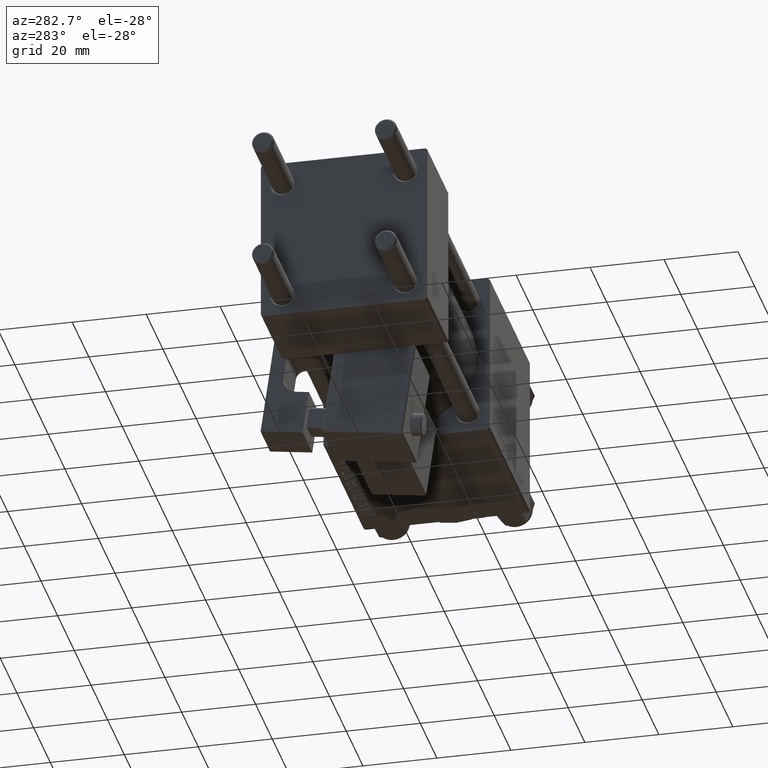
[diagram: clean part render]
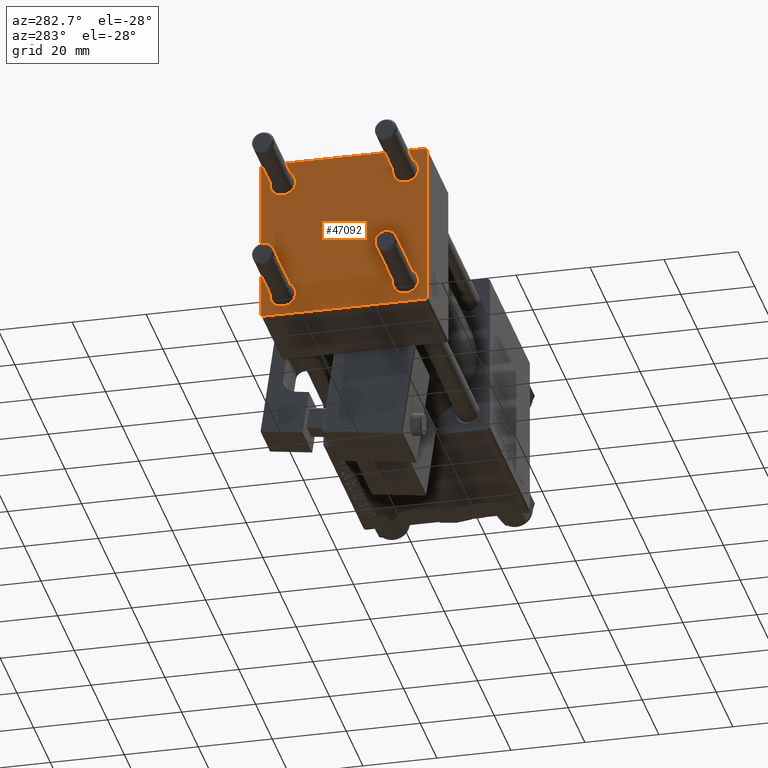
[diagram: same view with one face highlighted and labeled with its STEP entity id]
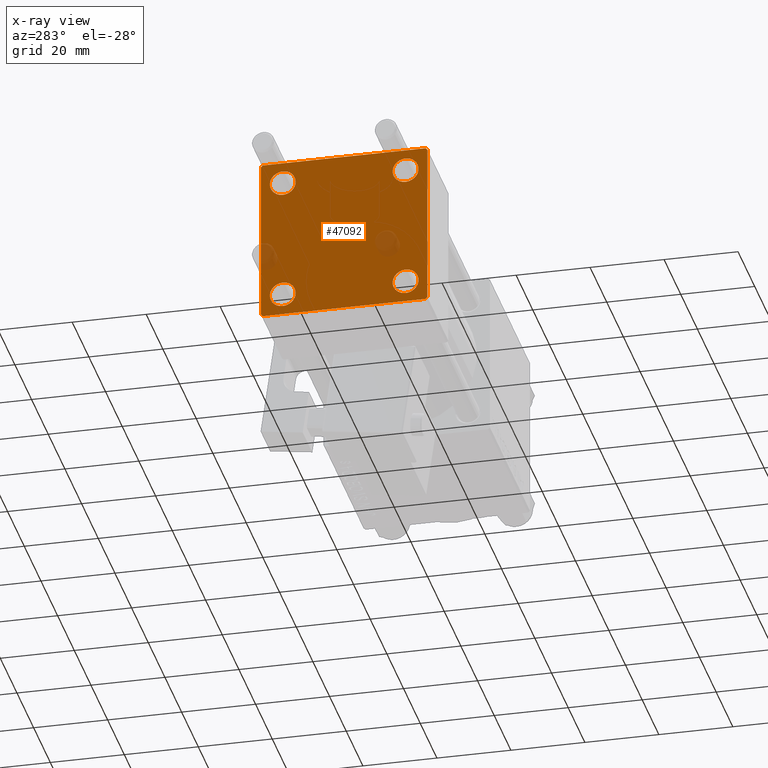
[diagram: x-ray of the same camera — body ghosted, the highlighted face saturated]
A machine part, auxiliary view. The second image highlights one B-rep face of the part: STEP entity #47092.
The next image is the same camera in x-ray: the body ghosted, the highlighted face saturated — about 4% of this face is hidden behind the body in this view.
In plain terms, the highlighted planar face has unit normal (-1, 0, 0).
Its self-contained STEP definition (entity closure, byte-faithful):
#74 = DIRECTION ( 'NONE',  ( 0.000000000000000000, -1.000000000000000000, -7.709882115452476934E-17 ) ) ;
#1433 = CARTESIAN_POINT ( 'NONE',  ( 0.000000000000000000, -22.50000000000000000, 22.00000000000000000 ) ) ;
#1848 = VERTEX_POINT ( 'NONE', #3739 ) ;
#2011 = CARTESIAN_POINT ( 'NONE',  ( 0.000000000000000000, -16.59999999999999076, -20.10000000000000497 ) ) ;
#2493 = CARTESIAN_POINT ( 'NONE',  ( 0.000000000000000000, -16.59999999999999076, -16.60000000000000853 ) ) ;
#3388 = CARTESIAN_POINT ( 'NONE',  ( 0.000000000000000000, 16.59999999999999787, 16.60000000000000497 ) ) ;
#3739 = CARTESIAN_POINT ( 'NONE',  ( 0.000000000000000000, -21.99999999999997158, -22.50000000000000711 ) ) ;
#4203 = VECTOR ( 'NONE', #74, 1000.000000000000000 ) ;
#4820 = VECTOR ( 'NONE', #14344, 1000.000000000000000 ) ;
#4884 = CIRCLE ( 'NONE', #51283, 3.499999999999996003 ) ;
#4924 = CARTESIAN_POINT ( 'NONE',  ( 0.000000000000000000, -22.25000000000014566, -22.24999999999984013 ) ) ;
#5824 = AXIS2_PLACEMENT_3D ( 'NONE', #22515, #50839, #6700 ) ;
#5914 = FACE_OUTER_BOUND ( 'NONE', #36065, .T. ) ;
#6700 = DIRECTION ( 'NONE',  ( -0.000000000000000000, 0.000000000000000000, 1.000000000000000000 ) ) ;
#7170 = DIRECTION ( 'NONE',  ( 1.000000000000000000, -0.000000000000000000, 0.000000000000000000 ) ) ;
#7255 = ORIENTED_EDGE ( 'NONE', *, *, #27872, .T. ) ;
#7354 = DIRECTION ( 'NONE',  ( 0.000000000000000000, 0.000000000000000000, 1.000000000000000000 ) ) ;
#7822 = DIRECTION ( 'NONE',  ( 0.000000000000000000, 0.000000000000000000, 1.000000000000000000 ) ) ;
#7938 = DIRECTION ( 'NONE',  ( 0.000000000000000000, 0.000000000000000000, -1.000000000000000000 ) ) ;
#8897 = EDGE_CURVE ( 'NONE', #45718, #21175, #48620, .T. ) ;
#8956 = ORIENTED_EDGE ( 'NONE', *, *, #33418, .T. ) ;
#9461 = CARTESIAN_POINT ( 'NONE',  ( 0.000000000000000000, 22.50000000000000000, 21.99999999999999645 ) ) ;
#9640 = EDGE_LOOP ( 'NONE', ( #47154, #17246 ) ) ;
#9792 = EDGE_CURVE ( 'NONE', #48255, #41336, #24974, .T. ) ;
#9871 = VERTEX_POINT ( 'NONE', #33959 ) ;
#10195 = VECTOR ( 'NONE', #42475, 999.9999999999998863 ) ;
#10863 = DIRECTION ( 'NONE',  ( 0.000000000000000000, 0.000000000000000000, 1.000000000000000000 ) ) ;
#11584 = VERTEX_POINT ( 'NONE', #39827 ) ;
#11982 = DIRECTION ( 'NONE',  ( 0.000000000000000000, -1.000000000000000000, -2.312964634635742957E-16 ) ) ;
#12271 = LINE ( 'NONE', #44533, #4820 ) ;
#12340 = CARTESIAN_POINT ( 'NONE',  ( 0.000000000000000000, -22.50000000000000000, 22.50000000000000000 ) ) ;
#12435 = VERTEX_POINT ( 'NONE', #9461 ) ;
#12673 = CIRCLE ( 'NONE', #42205, 3.499999999999996003 ) ;
#13439 = ORIENTED_EDGE ( 'NONE', *, *, #39315, .T. ) ;
#13634 = DIRECTION ( 'NONE',  ( 1.000000000000000000, -0.000000000000000000, 0.000000000000000000 ) ) ;
#13643 = VERTEX_POINT ( 'NONE', #32210 ) ;
#14088 = FACE_BOUND ( 'NONE', #52042, .T. ) ;
#14344 = DIRECTION ( 'NONE',  ( -0.000000000000000000, -0.7071067811865426878, -0.7071067811865524577 ) ) ;
#14465 = LINE ( 'NONE', #38230, #10195 ) ;
#14872 = PLANE ( 'NONE',  #5824 ) ;
#15587 = DIRECTION ( 'NONE',  ( 0.000000000000000000, 0.7071067811865474617, -0.7071067811865474617 ) ) ;
#15703 = EDGE_CURVE ( 'NONE', #41336, #48255, #4884, .T. ) ;
#15848 = LINE ( 'NONE', #44147, #50236 ) ;
#16245 = EDGE_LOOP ( 'NONE', ( #50190, #51485 ) ) ;
#16533 = VECTOR ( 'NONE', #41107, 1000.000000000000000 ) ;
#17246 = ORIENTED_EDGE ( 'NONE', *, *, #23243, .T. ) ;
#17283 = CARTESIAN_POINT ( 'NONE',  ( 0.000000000000000000, -16.59999999999999076, -16.60000000000000853 ) ) ;
#17861 = DIRECTION ( 'NONE',  ( 1.000000000000000000, -0.000000000000000000, 0.000000000000000000 ) ) ;
#18773 = CARTESIAN_POINT ( 'NONE',  ( 0.000000000000000000, 16.59999999999999787, 16.60000000000000497 ) ) ;
#19679 = DIRECTION ( 'NONE',  ( 1.000000000000000000, -0.000000000000000000, 0.000000000000000000 ) ) ;
#20255 = VERTEX_POINT ( 'NONE', #49016 ) ;
#20795 = VERTEX_POINT ( 'NONE', #2011 ) ;
#20879 = EDGE_CURVE ( 'NONE', #33220, #13643, #34754, .T. ) ;
#21175 = VERTEX_POINT ( 'NONE', #32237 ) ;
#21257 = CIRCLE ( 'NONE', #30543, 3.499999999999996003 ) ;
#22020 = VERTEX_POINT ( 'NONE', #1433 ) ;
#22210 = ORIENTED_EDGE ( 'NONE', *, *, #15703, .T. ) ;
#22515 = CARTESIAN_POINT ( 'NONE',  ( 0.000000000000000000, 0.000000000000000000, 0.000000000000000000 ) ) ;
#22591 = CARTESIAN_POINT ( 'NONE',  ( 0.000000000000000000, -16.59999999999999076, 13.10000000000001030 ) ) ;
#22783 = EDGE_CURVE ( 'NONE', #11584, #20795, #29555, .T. ) ;
#23079 = EDGE_CURVE ( 'NONE', #47030, #1848, #48734, .T. ) ;
#23243 = EDGE_CURVE ( 'NONE', #21175, #45718, #12673, .T. ) ;
#23475 = DIRECTION ( 'NONE',  ( 0.000000000000000000, 0.000000000000000000, 1.000000000000000000 ) ) ;
#23963 = CARTESIAN_POINT ( 'NONE',  ( 0.000000000000000000, -16.59999999999999076, 20.10000000000000853 ) ) ;
#24497 = DIRECTION ( 'NONE',  ( 0.000000000000000000, 0.000000000000000000, -1.000000000000000000 ) ) ;
#24974 = CIRCLE ( 'NONE', #29193, 3.499999999999996003 ) ;
#25193 = CARTESIAN_POINT ( 'NONE',  ( 0.000000000000000000, 22.50000000000000000, -21.99999999999996803 ) ) ;
#25232 = DIRECTION ( 'NONE',  ( 0.000000000000000000, 0.000000000000000000, 1.000000000000000000 ) ) ;
#26035 = EDGE_LOOP ( 'NONE', ( #7255, #8956 ) ) ;
#26411 = ORIENTED_EDGE ( 'NONE', *, *, #34248, .F. ) ;
#26527 = CIRCLE ( 'NONE', #39197, 3.499999999999996003 ) ;
#26583 = DIRECTION ( 'NONE',  ( 0.000000000000000000, 0.000000000000000000, 1.000000000000000000 ) ) ;
#26886 = ORIENTED_EDGE ( 'NONE', *, *, #20879, .F. ) ;
#26973 = ORIENTED_EDGE ( 'NONE', *, *, #37177, .T. ) ;
#27557 = CARTESIAN_POINT ( 'NONE',  ( 0.000000000000000000, 16.59999999999999787, -16.60000000000000497 ) ) ;
#27571 = ORIENTED_EDGE ( 'NONE', *, *, #23079, .T. ) ;
#27872 = EDGE_CURVE ( 'NONE', #20255, #9871, #21257, .T. ) ;
#28587 = VERTEX_POINT ( 'NONE', #52028 ) ;
#28702 = AXIS2_PLACEMENT_3D ( 'NONE', #2493, #46110, #42397 ) ;
#28951 = ORIENTED_EDGE ( 'NONE', *, *, #34958, .T. ) ;
#29132 = VECTOR ( 'NONE', #24497, 1000.000000000000000 ) ;
#29193 = AXIS2_PLACEMENT_3D ( 'NONE', #36901, #13634, #37158 ) ;
#29203 = LINE ( 'NONE', #4924, #16533 ) ;
#29555 = CIRCLE ( 'NONE', #28702, 3.499999999999996003 ) ;
#30312 = CARTESIAN_POINT ( 'NONE',  ( 0.000000000000000000, 16.59999999999999787, -13.10000000000000675 ) ) ;
#30543 = AXIS2_PLACEMENT_3D ( 'NONE', #3388, #31377, #7354 ) ;
#31377 = DIRECTION ( 'NONE',  ( 1.000000000000000000, -0.000000000000000000, 0.000000000000000000 ) ) ;
#31702 = AXIS2_PLACEMENT_3D ( 'NONE', #27557, #17861, #26583 ) ;
#32210 = CARTESIAN_POINT ( 'NONE',  ( 0.000000000000000000, -21.99999999999997868, 22.50000000000000000 ) ) ;
#32237 = CARTESIAN_POINT ( 'NONE',  ( 0.000000000000000000, 16.59999999999999787, -20.10000000000000142 ) ) ;
#32243 = LINE ( 'NONE', #44690, #39158 ) ;
#32584 = EDGE_CURVE ( 'NONE', #33220, #12435, #32243, .T. ) ;
#32904 = DIRECTION ( 'NONE',  ( 1.000000000000000000, -0.000000000000000000, 0.000000000000000000 ) ) ;
#33220 = VERTEX_POINT ( 'NONE', #36798 ) ;
#33418 = EDGE_CURVE ( 'NONE', #9871, #20255, #26527, .T. ) ;
#33959 = CARTESIAN_POINT ( 'NONE',  ( 0.000000000000000000, 16.59999999999999787, 13.10000000000000675 ) ) ;
#34248 = EDGE_CURVE ( 'NONE', #22020, #28587, #48568, .T. ) ;
#34421 = FACE_BOUND ( 'NONE', #9640, .T. ) ;
#34754 = LINE ( 'NONE', #46680, #4203 ) ;
#34958 = EDGE_CURVE ( 'NONE', #12435, #38392, #15848, .T. ) ;
#35078 = CIRCLE ( 'NONE', #35938, 3.499999999999996003 ) ;
#35938 = AXIS2_PLACEMENT_3D ( 'NONE', #17283, #32904, #25232 ) ;
#36065 = EDGE_LOOP ( 'NONE', ( #28951, #13439, #27571, #26973, #26411, #49175, #26886, #39304 ) ) ;
#36635 = EDGE_CURVE ( 'NONE', #20795, #11584, #35078, .T. ) ;
#36798 = CARTESIAN_POINT ( 'NONE',  ( 0.000000000000000000, 21.99999999999999289, 22.50000000000000355 ) ) ;
#36901 = CARTESIAN_POINT ( 'NONE',  ( 0.000000000000000000, -16.59999999999999076, 16.60000000000000853 ) ) ;
#37158 = DIRECTION ( 'NONE',  ( 0.000000000000000000, 0.000000000000000000, 1.000000000000000000 ) ) ;
#37177 = EDGE_CURVE ( 'NONE', #1848, #28587, #29203, .T. ) ;
#38123 = FACE_BOUND ( 'NONE', #16245, .T. ) ;
#38230 = CARTESIAN_POINT ( 'NONE',  ( -0.000000000000000000, -22.24999999999984013, 22.25000000000015277 ) ) ;
#38392 = VERTEX_POINT ( 'NONE', #25193 ) ;
#39158 = VECTOR ( 'NONE', #15587, 1000.000000000000114 ) ;
#39197 = AXIS2_PLACEMENT_3D ( 'NONE', #18773, #7170, #10863 ) ;
#39304 = ORIENTED_EDGE ( 'NONE', *, *, #32584, .T. ) ;
#39315 = EDGE_CURVE ( 'NONE', #38392, #47030, #12271, .T. ) ;
#39827 = CARTESIAN_POINT ( 'NONE',  ( 0.000000000000000000, -16.59999999999999076, -13.10000000000001030 ) ) ;
#39864 = CARTESIAN_POINT ( 'NONE',  ( 0.000000000000000000, -16.59999999999999076, 16.60000000000000853 ) ) ;
#40548 = VECTOR ( 'NONE', #11982, 1000.000000000000000 ) ;
#41107 = DIRECTION ( 'NONE',  ( 0.000000000000000000, -0.7071067811865426878, 0.7071067811865524577 ) ) ;
#41336 = VERTEX_POINT ( 'NONE', #23963 ) ;
#42205 = AXIS2_PLACEMENT_3D ( 'NONE', #51707, #19679, #7822 ) ;
#42397 = DIRECTION ( 'NONE',  ( 0.000000000000000000, 0.000000000000000000, 1.000000000000000000 ) ) ;
#42475 = DIRECTION ( 'NONE',  ( -0.000000000000000000, 0.7071067811865525687, 0.7071067811865425767 ) ) ;
#44147 = CARTESIAN_POINT ( 'NONE',  ( 0.000000000000000000, 22.50000000000000000, 22.50000000000000355 ) ) ;
#44533 = CARTESIAN_POINT ( 'NONE',  ( 0.000000000000000000, 22.25000000000014566, -22.24999999999984013 ) ) ;
#44690 = CARTESIAN_POINT ( 'NONE',  ( 0.000000000000000000, 22.24999999999999645, 22.24999999999999645 ) ) ;
#45718 = VERTEX_POINT ( 'NONE', #30312 ) ;
#46110 = DIRECTION ( 'NONE',  ( 1.000000000000000000, -0.000000000000000000, 0.000000000000000000 ) ) ;
#46680 = CARTESIAN_POINT ( 'NONE',  ( 0.000000000000000000, 22.50000000000000000, 22.50000000000000355 ) ) ;
#46869 = FACE_BOUND ( 'NONE', #26035, .T. ) ;
#47030 = VERTEX_POINT ( 'NONE', #49031 ) ;
#47092 = ADVANCED_FACE ( 'NONE', ( #14088, #38123, #34421, #46869, #5914 ), #14872, .T. ) ;
#47154 = ORIENTED_EDGE ( 'NONE', *, *, #8897, .T. ) ;
#48209 = CARTESIAN_POINT ( 'NONE',  ( 0.000000000000000000, 22.50000000000000000, -22.49999999999999645 ) ) ;
#48255 = VERTEX_POINT ( 'NONE', #22591 ) ;
#48568 = LINE ( 'NONE', #12340, #29132 ) ;
#48617 = DIRECTION ( 'NONE',  ( 1.000000000000000000, -0.000000000000000000, 0.000000000000000000 ) ) ;
#48620 = CIRCLE ( 'NONE', #31702, 3.499999999999996003 ) ;
#48734 = LINE ( 'NONE', #48209, #40548 ) ;
#49016 = CARTESIAN_POINT ( 'NONE',  ( 0.000000000000000000, 16.59999999999999787, 20.10000000000000142 ) ) ;
#49031 = CARTESIAN_POINT ( 'NONE',  ( 0.000000000000000000, 21.99999999999999289, -22.49999999999999645 ) ) ;
#49175 = ORIENTED_EDGE ( 'NONE', *, *, #51507, .T. ) ;
#50190 = ORIENTED_EDGE ( 'NONE', *, *, #22783, .T. ) ;
#50236 = VECTOR ( 'NONE', #7938, 1000.000000000000000 ) ;
#50839 = DIRECTION ( 'NONE',  ( -1.000000000000000000, 0.000000000000000000, -0.000000000000000000 ) ) ;
#51283 = AXIS2_PLACEMENT_3D ( 'NONE', #39864, #48617, #23475 ) ;
#51485 = ORIENTED_EDGE ( 'NONE', *, *, #36635, .T. ) ;
#51507 = EDGE_CURVE ( 'NONE', #22020, #13643, #14465, .T. ) ;
#51707 = CARTESIAN_POINT ( 'NONE',  ( 0.000000000000000000, 16.59999999999999787, -16.60000000000000497 ) ) ;
#52028 = CARTESIAN_POINT ( 'NONE',  ( 0.000000000000000000, -22.50000000000000000, -21.99999999999997158 ) ) ;
#52042 = EDGE_LOOP ( 'NONE', ( #22210, #52220 ) ) ;
#52220 = ORIENTED_EDGE ( 'NONE', *, *, #9792, .T. ) ;